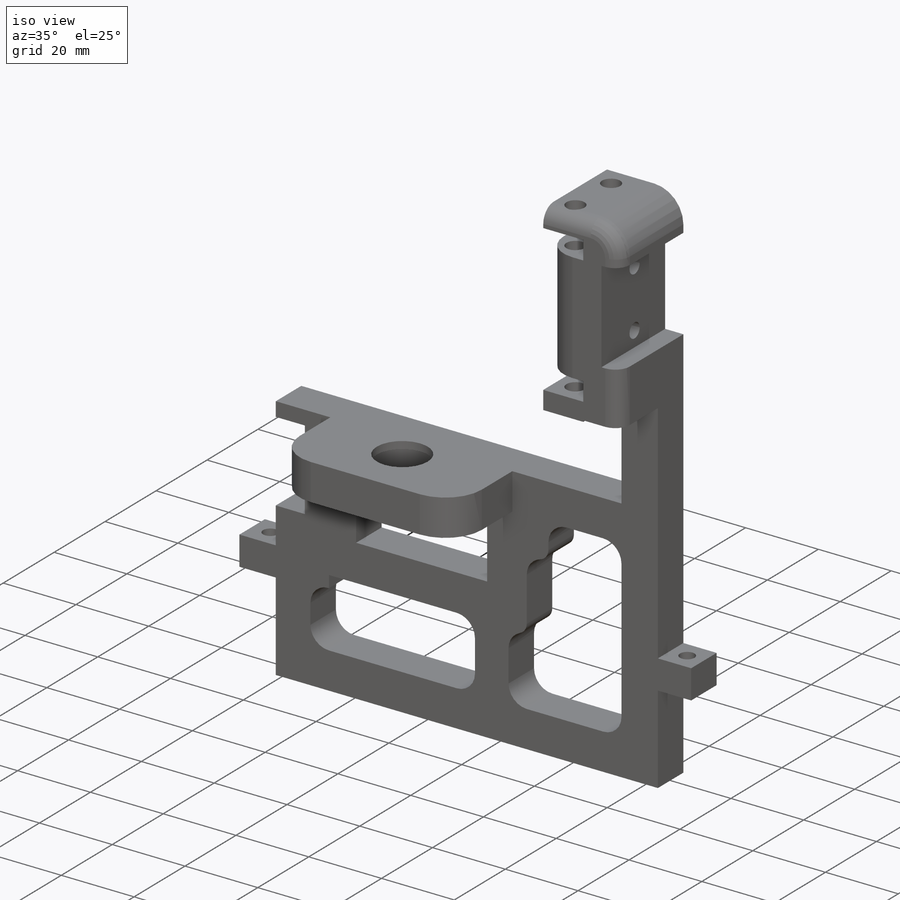
[diagram: iso view]
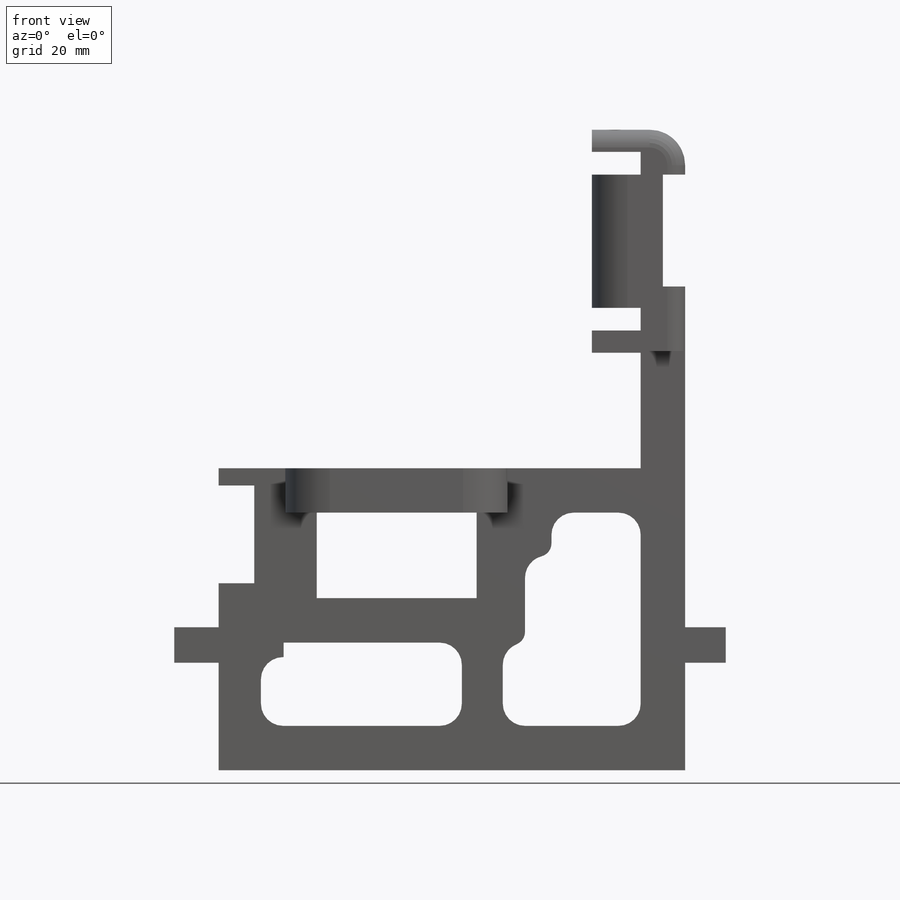
[diagram: front view]
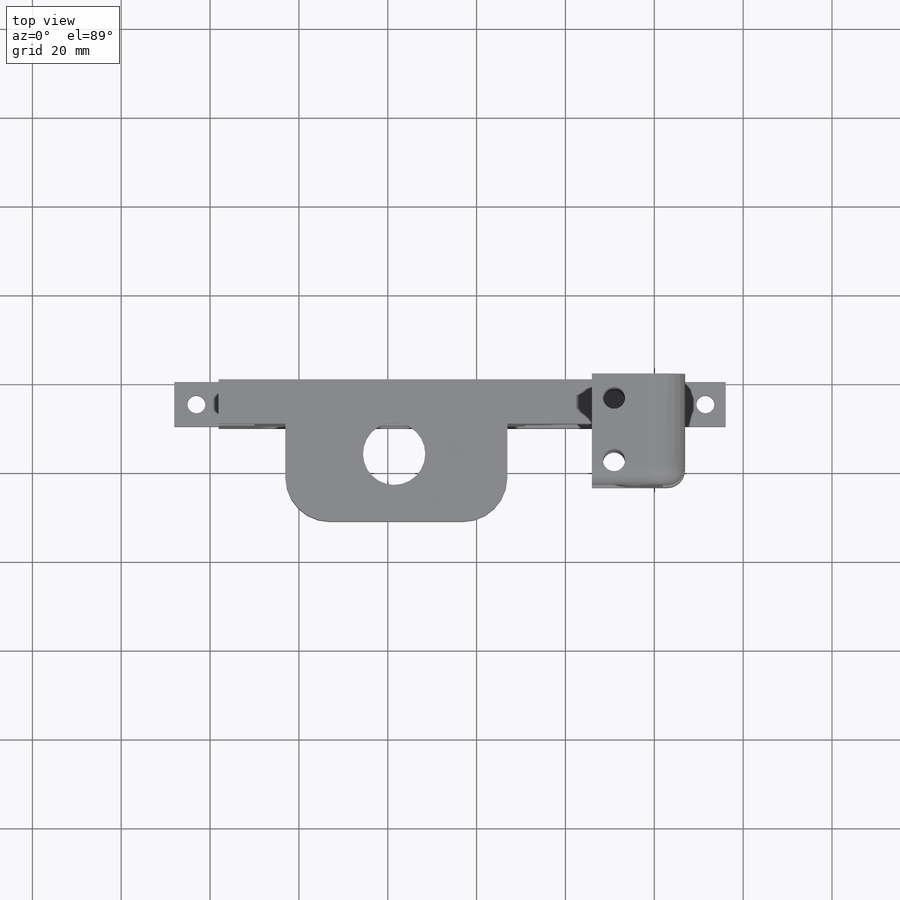
[diagram: top view]
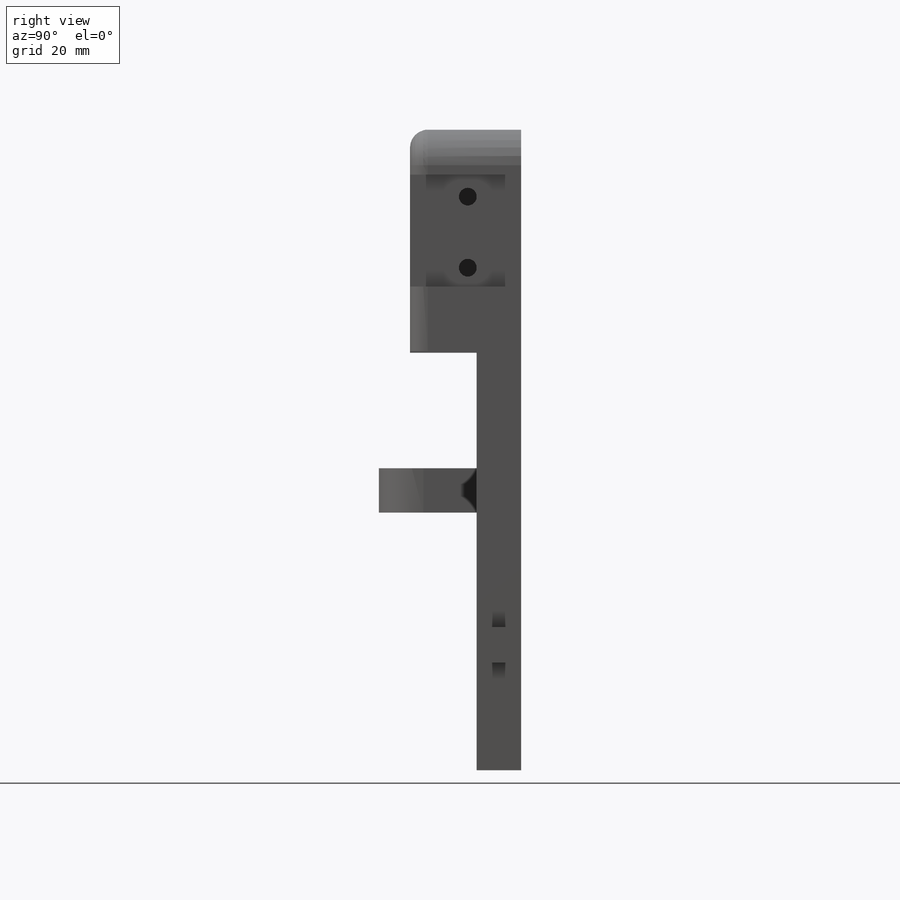
[diagram: right view]
SOLIDWORKS PART (.sldprt)
format: sldprt  version: not decoded by parser v0  size: 530,432 bytes
history: native  units: mm
features: sketch x17, cut_extrude x8, fillet x6, extrude x3, hole x3, material x1 (+14 scaffold rows collapsed)
feature tree (52):
  scaffold x14  (default folders/planes/origin — collapsed)
  material  "PLA Black"
  sketch  "Sketch1"  dims[D1=30.0mm D2=5.1mm D3=5.1mm D4=11.0mm D5=21.0mm D6=115.0mm D7=10.0mm D8=8.0mm D9=24.2mm D10=26.0mm D11=5.0mm D12=5.0mm D13=112.0mm]
  extrude  "Extrude1"  Depth=10mm
  sketch  "Sketch2"
  extrude  "Extrude2"  Depth=15mm
  fillet  "Fillet1"  Radius=8mm
  sketch  "Sketch3"  dims[D2=5.0mm D1=14.0mm D3=5.5mm D4=5.0mm]
  cut_extrude  "Cut-Extrude1"  Depth=53.683044mm
  fillet  "Fillet4"  Radius=8mm
  fillet  "Fillet7"  Radius=4mm
  sketch  "Sketch4"  dims[D1=5.0mm D2=25.2mm]
  cut_extrude  "Extrude3"  [1 undecoded]
  hole  "Ø4.0 (4) Diameter Hole1"  Diameter=4mm Depth=15mm
  sketch  "3DSketch1"  dims[D1=12.0mm D2=16.0mm D3=5.0mm]
  sketch  "Sketch5"  dims[hole-wizard template sketch: 50 standard entries collapsed; hole parameters above]
  sketch  "Sketch6"  dims[D1=10.0mm D2=50.0mm D3=40.0mm]
  extrude  "Extrude4"  Depth=22mm
  sketch  "Sketch7"
  cut_extrude  "Extrude5"  Depth=65mm
  sketch  "Sketch8"  dims[D1=14.0mm]
  cut_extrude  "Extrude6"  Depth=65mm
  sketch  "Sketch9"  dims[D1=22.5mm]
  cut_extrude  "Extrude7"  Depth=8mm
  sketch  "Sketch10"  dims[c1.D1=12.0mm c1.D2=25.0mm c1.D3=25.0mm c1.D4=20.0mm c1.D5=30.0mm c2.D1=10.0mm c2.D2=10.0mm c2.D3=10.0mm c2.D4=10.0mm]
  fillet  "Fillet8"  Radius=10mm
  sketch  "Sketch11"  dims[D1=8.0mm]
  cut_extrude  "Extrude9"  Depth=28mm
  hole  "Ø4.0 (4) Diameter Hole2"  Diameter=4mm Depth=15mm
  sketch  "3DSketch2"
  sketch  "Sketch12"  dims[hole-wizard template sketch: 50 standard entries collapsed; hole parameters above]
  sketch  "Sketch13"  dims[D1=8.0mm D2=22.0mm]
  cut_extrude  "Cut-Extrude2"  Depth=16mm
  hole  "Ø4.0 (4) Diameter Hole3"  Diameter=3.9mm Depth=15mm
  sketch  "3DSketch3"  dims[D1=12.0mm D2=5.0mm D3=5.0mm]
  sketch  "Sketch14"  dims[hole-wizard template sketch: 47 standard entries collapsed; hole parameters kept: c15.Hole Depth=15.0mm c15.D3=~14.816244mm c15.Drill Angle=180.0deg]
  cut_extrude  "Extrude10"  Depth=10mm
  fillet  "Fillet9"  Radius=5mm
  fillet  "Fillet10"  Radius=3mm
decode coverage: 33 of 37 modeling features carry decoded parameters
note: ~ marks probable driven/reference dimensions
note: 1 parameter value undecoded
note: suppression state not decoded; provenance and decode notes live in map.json
